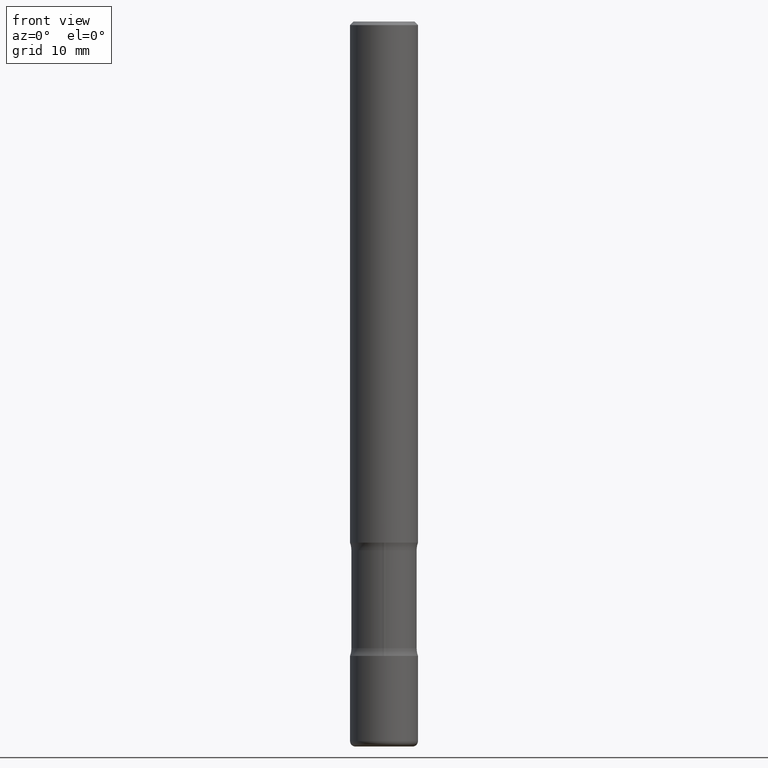
[diagram: clean part render]
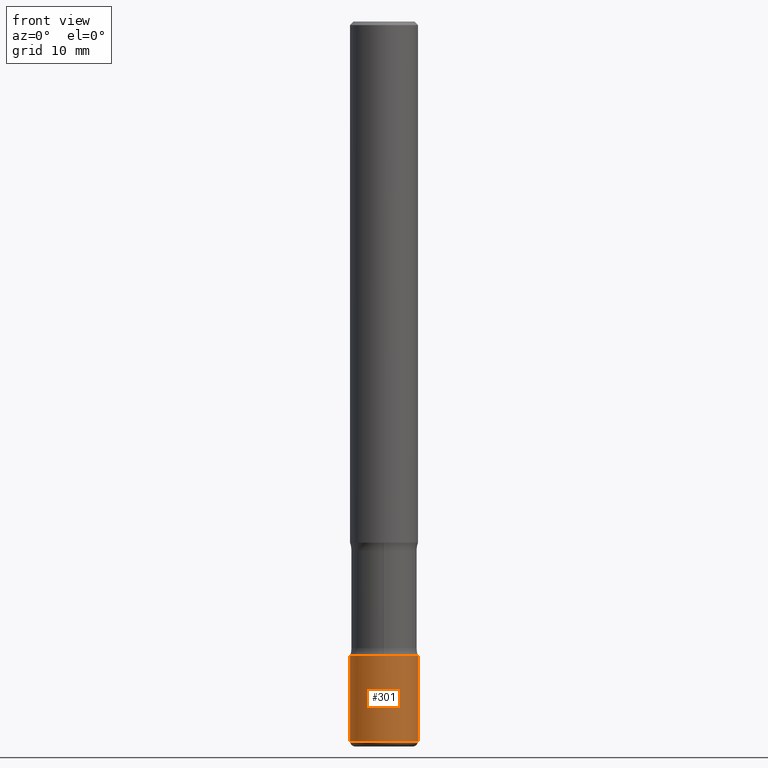
[diagram: same view with one face highlighted and labeled with its STEP entity id]
A machine part, front view. The second image highlights one B-rep face of the part: STEP entity #301.
In plain terms, the highlighted cylindrical surface (edge-blend (fillet) strip) has radius 4.7625 mm, axis along (-0, 0, 1).
Its self-contained STEP definition (entity closure, byte-faithful):
#15 = CARTESIAN_POINT ( 'NONE',  ( -0.1875000000000000278, -1.170841517102895815E-14, -3.500000000000000000 ) ) ;
#21 = DIRECTION ( 'NONE',  ( -2.445468806185136597E-29, 3.491481338843145583E-15, 1.000000000000000000 ) ) ;
#49 = CARTESIAN_POINT ( 'NONE',  ( 0.1875000000000000278, -1.309305502066175008E-15, 9.142831454617381013E-30 ) ) ;
#78 = AXIS2_PLACEMENT_3D ( 'NONE', #803, #689, #758 ) ;
#88 = DIRECTION ( 'NONE',  ( -2.445468806185136597E-29, 3.491481338843145583E-15, 1.000000000000000000 ) ) ;
#98 = CARTESIAN_POINT ( 'NONE',  ( 8.559140821647976968E-29, -1.222018468595100934E-14, -3.500000000000000000 ) ) ;
#107 = DIRECTION ( 'NONE',  ( -2.445468806185136877E-29, 3.491481338843145188E-15, 1.000000000000000000 ) ) ;
#109 = CARTESIAN_POINT ( 'NONE',  ( 0.1874999999999998335, -1.517048641727346397E-14, -3.970000000000000195 ) ) ;
#149 = CARTESIAN_POINT ( 'NONE',  ( -0.1874999999999998335, -1.252891328565710111E-14, -3.970000000000000195 ) ) ;
#152 = DIRECTION ( 'NONE',  ( -2.445468806185136877E-29, 3.491481338843145188E-15, 1.000000000000000000 ) ) ;
#198 = VECTOR ( 'NONE', #152, 39.37007874015748143 ) ;
#208 = EDGE_CURVE ( 'NONE', #670, #459, #229, .T. ) ;
#229 = CIRCLE ( 'NONE', #360, 0.1875000000000000278 ) ;
#237 = ORIENTED_EDGE ( 'NONE', *, *, #493, .T. ) ;
#286 = EDGE_LOOP ( 'NONE', ( #781, #237, #792, #481 ) ) ;
#301 = ADVANCED_FACE ( 'NONE', ( #402 ), #654, .T. ) ;
#302 = LINE ( 'NONE', #49, #332 ) ;
#332 = VECTOR ( 'NONE', #107, 39.37007874015748143 ) ;
#341 = DIRECTION ( 'NONE',  ( 1.000000000000000000, -6.982962677686261189E-15, 0.000000000000000000 ) ) ;
#343 = LINE ( 'NONE', #468, #198 ) ;
#353 = EDGE_CURVE ( 'NONE', #393, #459, #302, .T. ) ;
#360 = AXIS2_PLACEMENT_3D ( 'NONE', #98, #88, #341 ) ;
#393 = VERTEX_POINT ( 'NONE', #109 ) ;
#398 = AXIS2_PLACEMENT_3D ( 'NONE', #410, #21, #718 ) ;
#402 = FACE_OUTER_BOUND ( 'NONE', #286, .T. ) ;
#410 = CARTESIAN_POINT ( 'NONE',  ( 0.000000000000000000, 0.000000000000000000, 0.000000000000000000 ) ) ;
#437 = CIRCLE ( 'NONE', #78, 0.1875000000000000278 ) ;
#450 = CARTESIAN_POINT ( 'NONE',  ( 0.1875000000000000278, -1.352949018801718277E-14, -3.500000000000000000 ) ) ;
#459 = VERTEX_POINT ( 'NONE', #450 ) ;
#468 = CARTESIAN_POINT ( 'NONE',  ( -0.1875000000000000278, 1.332267629550188046E-15, -9.223003294227947991E-30 ) ) ;
#481 = ORIENTED_EDGE ( 'NONE', *, *, #208, .F. ) ;
#493 = EDGE_CURVE ( 'NONE', #620, #393, #437, .T. ) ;
#615 = EDGE_CURVE ( 'NONE', #620, #670, #343, .T. ) ;
#620 = VERTEX_POINT ( 'NONE', #149 ) ;
#654 = CYLINDRICAL_SURFACE ( 'NONE', #398, 0.1875000000000000278 ) ;
#670 = VERTEX_POINT ( 'NONE', #15 ) ;
#689 = DIRECTION ( 'NONE',  ( -2.445468806185136597E-29, 3.491481338843145583E-15, 1.000000000000000000 ) ) ;
#718 = DIRECTION ( 'NONE',  ( 1.000000000000000000, -6.982962677686265922E-15, 4.876176775795935793E-29 ) ) ;
#758 = DIRECTION ( 'NONE',  ( 1.000000000000000000, -6.982962677686261189E-15, 0.000000000000000000 ) ) ;
#781 = ORIENTED_EDGE ( 'NONE', *, *, #615, .F. ) ;
#792 = ORIENTED_EDGE ( 'NONE', *, *, #353, .T. ) ;
#803 = CARTESIAN_POINT ( 'NONE',  ( 9.708511160554992872E-29, -1.386118091520728738E-14, -3.970000000000000195 ) ) ;